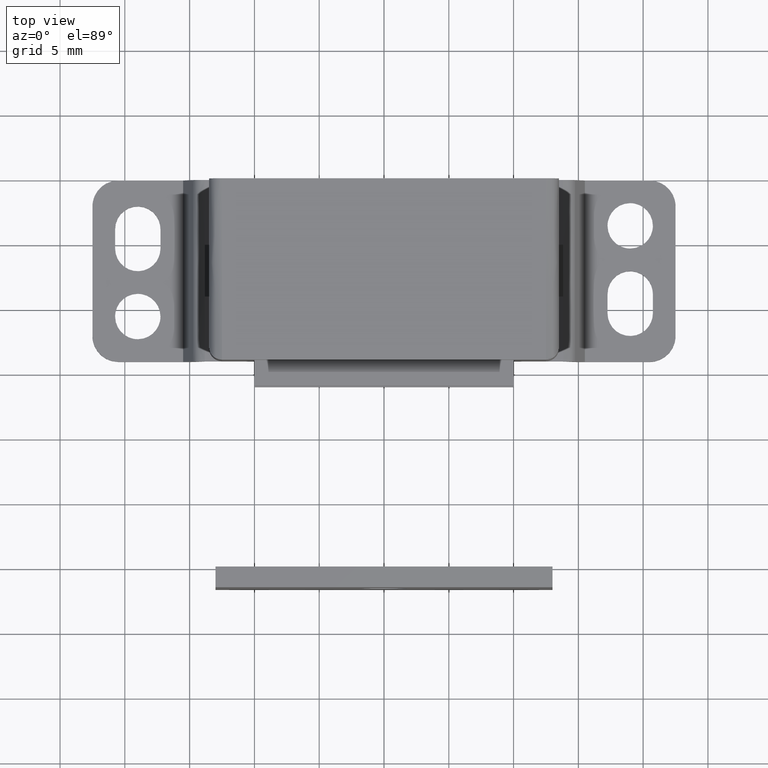
[diagram: clean part render]
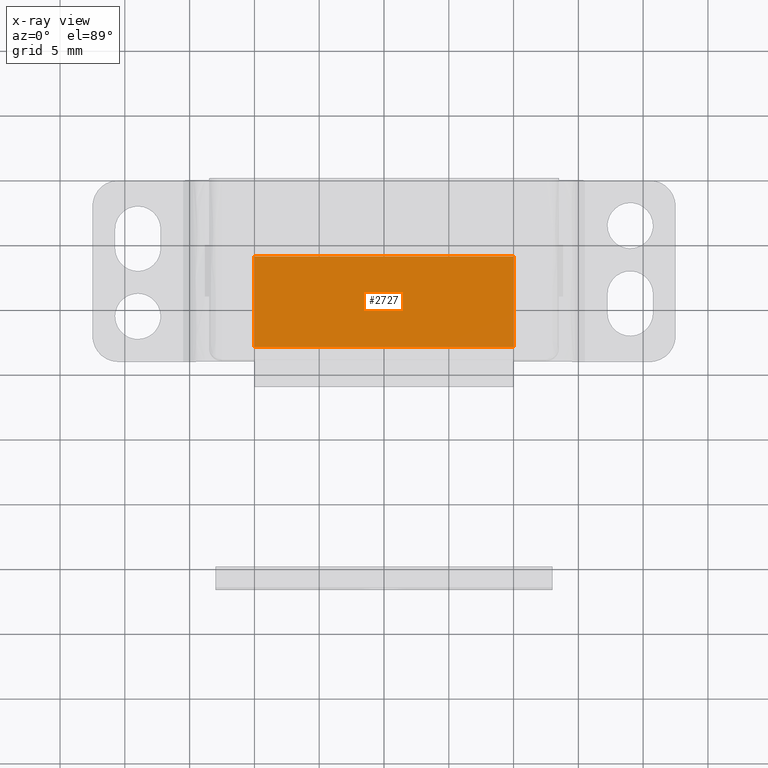
[diagram: x-ray — body ghosted, one internal face saturated and labeled with its STEP entity id]
A machine part, top view, then the same camera in x-ray: the body is ghosted and one INTERNAL B-rep face — a face not visible from any outside direction — is saturated and labeled: STEP entity #2727.
In plain terms, the highlighted face is a freeform B-spline surface patch.
Its self-contained STEP definition (entity closure, byte-faithful):
#2634=CARTESIAN_POINT('',(10.000004000000001,-5.999999999999901,8.500000000000000));
#2635=VERTEX_POINT('',#2634);
#2641=CARTESIAN_POINT('',(10.000004000000001,-13.0,8.500000000000000));
#2642=VERTEX_POINT('',#2641);
#2643=CARTESIAN_POINT('',(10.000004000000001,-5.999999999999901,8.500000000000000));
#2644=CARTESIAN_POINT('',(10.000004000000001,-13.0,8.500000000000000));
#2645=QUASI_UNIFORM_CURVE('',1,(#2643,#2644),.UNSPECIFIED.,.F.,.U.);
#2646=EDGE_CURVE('',#2635,#2642,#2645,.T.);
#2670=CARTESIAN_POINT('',(-10.0,-13.0,8.500000000000000));
#2671=VERTEX_POINT('',#2670);
#2677=CARTESIAN_POINT('',(-10.0,-5.999999999999901,8.500000000000000));
#2678=VERTEX_POINT('',#2677);
#2679=CARTESIAN_POINT('',(-10.0,-5.999999999999901,8.500000000000000));
#2680=CARTESIAN_POINT('',(-10.0,-13.0,8.500000000000000));
#2681=QUASI_UNIFORM_CURVE('',1,(#2679,#2680),.UNSPECIFIED.,.F.,.U.);
#2682=EDGE_CURVE('',#2678,#2671,#2681,.T.);
#2698=CARTESIAN_POINT('',(-10.0,-13.0,8.500000000000000));
#2699=CARTESIAN_POINT('',(10.000004000000001,-13.0,8.500000000000000));
#2700=QUASI_UNIFORM_CURVE('',1,(#2698,#2699),.UNSPECIFIED.,.F.,.U.);
#2701=EDGE_CURVE('',#2671,#2642,#2700,.T.);
#2712=CARTESIAN_POINT('',(-10.999000161036109,-13.349649986432651,8.500000000000000));
#2713=CARTESIAN_POINT('',(10.999004697478020,-13.349649986432651,8.500000000000000));
#2714=CARTESIAN_POINT('',(-10.999000161036109,-5.650349825812623,8.500000000000000));
#2715=CARTESIAN_POINT('',(10.999004697478020,-5.650349825812623,8.500000000000000));
#2716=B_SPLINE_SURFACE_WITH_KNOTS('',1,1,((#2712,#2714),(#2713,#2715)),.UNSPECIFIED.,.F.,.F.,.U.,(2,2),(2,2),(0.0,21.998004858514129),(0.0,7.699300160620024),.UNSPECIFIED.);
#2717=ORIENTED_EDGE('',*,*,#2646,.F.);
#2718=CARTESIAN_POINT('',(-10.0,-5.999999999999901,8.500000000000000));
#2719=CARTESIAN_POINT('',(10.000004000000001,-5.999999999999901,8.500000000000000));
#2720=QUASI_UNIFORM_CURVE('',1,(#2718,#2719),.UNSPECIFIED.,.F.,.U.);
#2721=EDGE_CURVE('',#2678,#2635,#2720,.T.);
#2722=ORIENTED_EDGE('',*,*,#2721,.F.);
#2723=ORIENTED_EDGE('',*,*,#2682,.T.);
#2724=ORIENTED_EDGE('',*,*,#2701,.T.);
#2725=EDGE_LOOP('',(#2717,#2722,#2723,#2724));
#2726=FACE_OUTER_BOUND('',#2725,.T.);
#2727=ADVANCED_FACE('',(#2726),#2716,.T.);